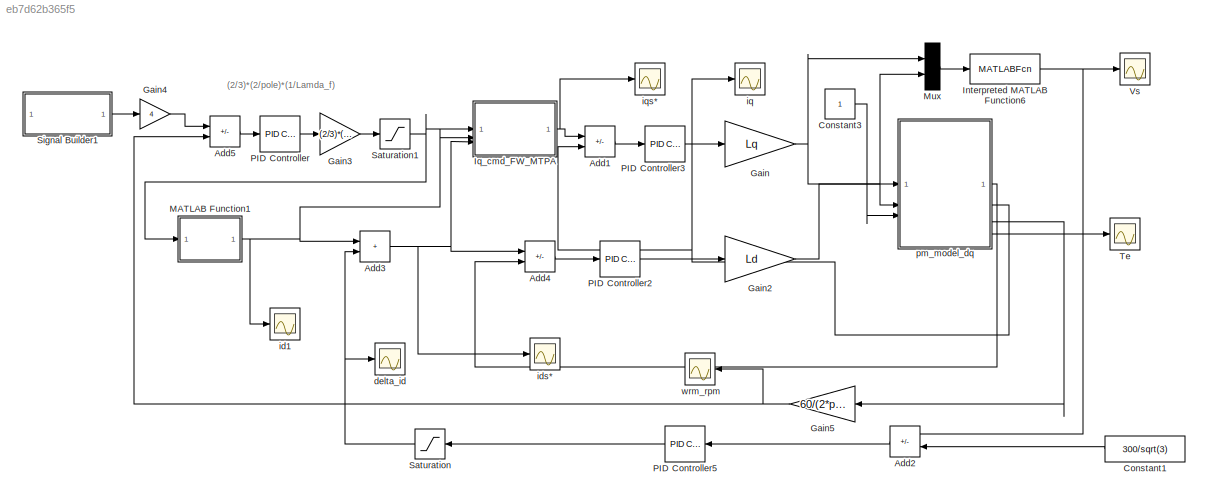
MODEL slx_eb7d62b365f5
KIND model
CONFIG AbsTol = auto
CONFIG EnableMultiTasking = off
CONFIG FixedStep = 0.00001
CONFIG MaxStep = auto
CONFIG MinStep = auto
CONFIG RelTol = 1e-4
CONFIG SampleTimeConstraint = Unconstrained
CONFIG SolverName = VariableStepAuto
CONFIG StartTime = 0.0
CONFIG StopTime = 4
BLOCK [Sum] Add1
  IconShape = rectangular
  Inputs = +-
BLOCK [Sum] Add2
  IconShape = rectangular
  Inputs = -+
  NameLocation = top
BLOCK [Sum] Add3
  IconShape = rectangular
BLOCK [Sum] Add4
  IconShape = rectangular
  Inputs = +-
BLOCK [Sum] Add5
  IconShape = rectangular
  Inputs = +-
BLOCK [Constant] Constant1
  NameLocation = top
  Value = 300/sqrt(3)
BLOCK [Constant] Constant3
BLOCK [Gain] Gain
  Gain = Lq
BLOCK [Gain] Gain2
  Gain = Ld
BLOCK [Gain] Gain3
  Gain = (2/3)*(2/pole)*(1/Lamda_f)
BLOCK [Gain] Gain4
  Gain = 4
BLOCK [Gain] Gain5
  Gain = 60/(2*pi)
BLOCK [MATLABFcn] Interpreted MATLAB Function6
  MATLABFcn = sqrt(u(1)^2+u(2)^2)
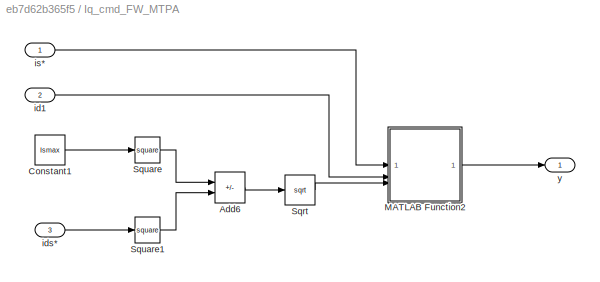
BLOCK [SubSystem] Iq_cmd_FW_MTPA
BLOCK [Sum] Iq_cmd_FW_MTPA/Add6
  IconShape = rectangular
  Inputs = +-
BLOCK [Constant] Iq_cmd_FW_MTPA/Constant1
  NameLocation = left
  Value = Ismax
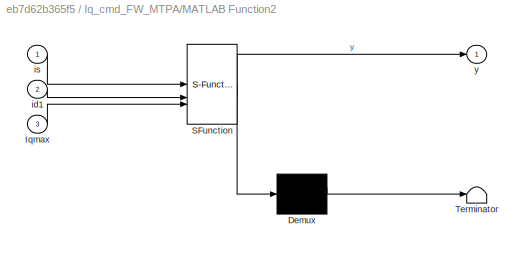
BLOCK [SubSystem] Iq_cmd_FW_MTPA/MATLAB Function2
  ErrorFcn = Stateflow.Translate.translate
  LibrarySourceBlock = simulink/User-Defined\nFunctions/MATLAB Function
  PermitHierarchicalResolution = ExplicitOnly
  SFBlockType = MATLAB Function
  TreatAsAtomicUnit = on
BLOCK [Demux] Iq_cmd_FW_MTPA/MATLAB Function2/ Demux 
  Outputs = 1
BLOCK [S-Function] Iq_cmd_FW_MTPA/MATLAB Function2/ SFunction 
  EnableBusSupport = on
  FunctionName = sf_sfun
  PortCounts = [3 2]
  SFcnIsStateOwnerBlock = off
  SFunctionDeploymentMode = off
  Tag = Stateflow S-Function 2
BLOCK [Terminator] Iq_cmd_FW_MTPA/MATLAB Function2/ Terminator 
BLOCK [Inport] Iq_cmd_FW_MTPA/MATLAB Function2/Iqmax
  Port = 3
BLOCK [Inport] Iq_cmd_FW_MTPA/MATLAB Function2/id1
  Port = 2
BLOCK [Inport] Iq_cmd_FW_MTPA/MATLAB Function2/is
BLOCK [Outport] Iq_cmd_FW_MTPA/MATLAB Function2/y
BLOCK [Sqrt] Iq_cmd_FW_MTPA/Sqrt
BLOCK [Math] Iq_cmd_FW_MTPA/Square
  Operator = square
BLOCK [Math] Iq_cmd_FW_MTPA/Square1
  Operator = square
BLOCK [Inport] Iq_cmd_FW_MTPA/id1
  Port = 2
BLOCK [Inport] Iq_cmd_FW_MTPA/ids*
  Port = 3
BLOCK [Inport] Iq_cmd_FW_MTPA/is*
BLOCK [Outport] Iq_cmd_FW_MTPA/y
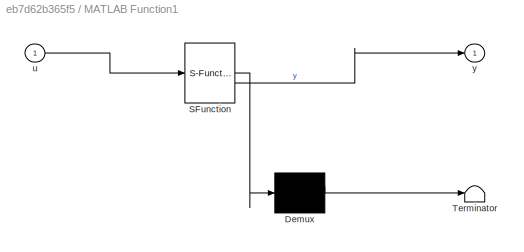
BLOCK [SubSystem] MATLAB Function1
  ErrorFcn = Stateflow.Translate.translate
  LibrarySourceBlock = simulink/User-Defined\nFunctions/MATLAB Function
  PermitHierarchicalResolution = ExplicitOnly
  SFBlockType = MATLAB Function
  TreatAsAtomicUnit = on
BLOCK [Demux] MATLAB Function1/ Demux 
  Outputs = 1
BLOCK [S-Function] MATLAB Function1/ SFunction 
  EnableBusSupport = on
  FunctionName = sf_sfun
  PortCounts = [1 2]
  SFcnIsStateOwnerBlock = off
  SFunctionDeploymentMode = off
  Tag = Stateflow S-Function 1
BLOCK [Terminator] MATLAB Function1/ Terminator 
BLOCK [Inport] MATLAB Function1/u
BLOCK [Outport] MATLAB Function1/y
BLOCK [Mux] Mux
  DisplayOption = bar
  Inputs = 2
BLOCK [Reference] PID Controller  REF=slpidlib/PID Controller
  LibrarySourceBlock = simulink/Continuous/PID Controller
  SourceBlock = slpidlib/PID Controller
  SourceType = PID 1dof
BLOCK [Reference] PID Controller2  REF=slpidlib/PID Controller
  LibrarySourceBlock = simulink/Continuous/PID Controller
  SourceBlock = slpidlib/PID Controller
  SourceType = PID 1dof
BLOCK [Reference] PID Controller3  REF=slpidlib/PID Controller
  LibrarySourceBlock = simulink/Continuous/PID Controller
  SourceBlock = slpidlib/PID Controller
  SourceType = PID 1dof
BLOCK [Reference] PID Controller5  REF=slpidlib/PID Controller
  LibrarySourceBlock = simulink/Continuous/PID Controller
  NameLocation = top
  SourceBlock = slpidlib/PID Controller
  SourceType = PID 1dof
BLOCK [Saturate] Saturation
  LowerLimit = -3.13
  NameLocation = top
  UpperLimit = 0
BLOCK [Saturate] Saturation1
  LowerLimit = -Ismax
  UpperLimit = Ismax
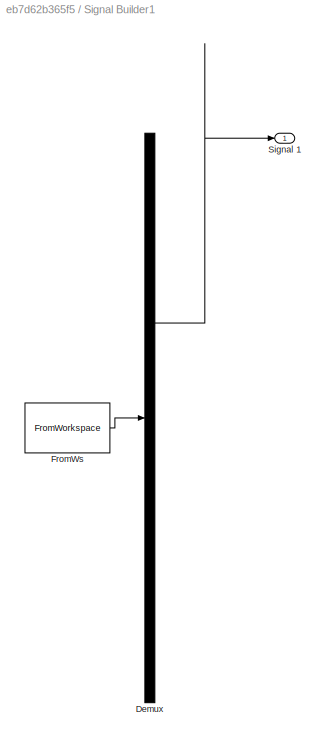
BLOCK [SubSystem] Signal Builder1
  ClipboardFcn = sigbuilder_block('clipboard');
  CloseFcn = sigbuilder_block('close');
  ContinueFcn = sigbuilder_block('continue');
  CopyFcn = sigbuilder_block('copy');
  DeleteFcn = sigbuilder_block('delete');
  LoadFcn = sigbuilder_block('load');
  MaskHideContents = on
  ModelCloseFcn = sigbuilder_block('modelClose');
  NameChangeFcn = sigbuilder_block('namechange');
  OpenFcn = sigbuilder_block('open',[346 179 550 400 ]);
  PauseFcn = sigbuilder_block('pause');
  PreSaveFcn = sigbuilder_block('preSave');
  StartFcn = sigbuilder_block('start');
  StopFcn = sigbuilder_block('stop');
  Tag = STV Subsys
BLOCK [Demux] Signal Builder1/Demux
  DisplayOption = none
  Outputs = 1
  Tag = STV Demux
BLOCK [FromWorkspace] Signal Builder1/FromWs
  Tag = STV FromWs
  VariableName = tuvar
BLOCK [Outport] Signal Builder1/Signal 1
  Tag = STV Outport
BLOCK [Scope] Te
  Floating = off
  NumInputPorts = 1
  ScopeSpecificationString = Simulink.scopes.TimeScopeBlockCfg('CurrentConfiguration', extmgr.ConfigurationSet(extmgr.Configuration('Core','General UI',true,'FigureColor',[1 1 1]),extmgr.Configuration('Core','Source UI',true),extmgr.Configuration('Sources','WiredSimulink',true,'DataLoggingVariableName','ScopeData1'),extmgr.Configuration('Visuals','Time Domain',true,'SerializedDisplays',{struct('MinYLimReal','-0.4457','MaxYLim...<+1562ch>
BLOCK [Scope] Vs
  Floating = off
  NumInputPorts = 1
  ScopeSpecificationString = Simulink.scopes.TimeScopeBlockCfg('CurrentConfiguration', extmgr.ConfigurationSet(extmgr.Configuration('Core','General UI',true,'FigureColor',[1 1 1]),extmgr.Configuration('Core','Source UI',true),extmgr.Configuration('Sources','WiredSimulink',true,'DataLoggingVariableName','ScopeData2'),extmgr.Configuration('Visuals','Time Domain',true,'SerializedDisplays',{struct('MinYLimReal','-31.0199','MaxYLi...<+1591ch>
BLOCK [Scope] delta_id
  Floating = off
  NumInputPorts = 1
  ScopeSpecificationString = Simulink.scopes.TimeScopeBlockCfg('CurrentConfiguration', extmgr.ConfigurationSet(extmgr.Configuration('Core','General UI',true,'FigureColor',[1 1 1]),extmgr.Configuration('Core','Source UI',true),extmgr.Configuration('Sources','WiredSimulink',true,'DataLoggingVariableName','ScopeData2'),extmgr.Configuration('Visuals','Time Domain',true,'SerializedDisplays',{struct('MinYLimReal','-3.52125','MaxYLi...<+1580ch>
BLOCK [Scope] id1
  Floating = off
  NumInputPorts = 1
  ScopeSpecificationString = Simulink.scopes.TimeScopeBlockCfg('CurrentConfiguration', extmgr.ConfigurationSet(extmgr.Configuration('Core','General UI',true,'FigureColor',[1 1 1]),extmgr.Configuration('Core','Source UI',true),extmgr.Configuration('Sources','WiredSimulink',true,'DataLoggingVariableName','ScopeData4'),extmgr.Configuration('Visuals','Time Domain',true,'SerializedDisplays',{struct('MinYLimReal','-0.4171','MaxYLim...<+1579ch>
BLOCK [Scope] ids*
  Floating = off
  NumInputPorts = 1
  ScopeSpecificationString = Simulink.scopes.TimeScopeBlockCfg('CurrentConfiguration', extmgr.ConfigurationSet(extmgr.Configuration('Core','General UI',true,'FigureColor',[1 1 1]),extmgr.Configuration('Core','Source UI',true),extmgr.Configuration('Sources','WiredSimulink',true,'DataLoggingVariableName','ScopeData3'),extmgr.Configuration('Visuals','Time Domain',true,'SerializedDisplays',{struct('MinYLimReal','-3.54599','MaxYLi...<+1570ch>
BLOCK [Scope] iq
  Floating = off
  NumInputPorts = 1
  ScopeSpecificationString = Simulink.scopes.TimeScopeBlockCfg('CurrentConfiguration', extmgr.ConfigurationSet(extmgr.Configuration('Core','General UI',true,'FigureColor',[1 1 1]),extmgr.Configuration('Core','Source UI',true),extmgr.Configuration('Sources','WiredSimulink',true,'DataLoggingVariableName','ScopeData1'),extmgr.Configuration('Visuals','Time Domain',true,'SerializedDisplays',{struct('MinYLimReal','0.69924','MaxYLim...<+1566ch>
BLOCK [Scope] iqs*
  Floating = off
  NumInputPorts = 1
  ScopeSpecificationString = Simulink.scopes.TimeScopeBlockCfg('CurrentConfiguration', extmgr.ConfigurationSet(extmgr.Configuration('Core','General UI',true,'FigureColor',[1 1 1]),extmgr.Configuration('Core','Source UI',true),extmgr.Configuration('Sources','WiredSimulink',true,'DataLoggingVariableName','ScopeData1'),extmgr.Configuration('Visuals','Time Domain',true,'SerializedDisplays',{struct('MinYLimReal','0.73221','MaxYLim...<+1567ch>
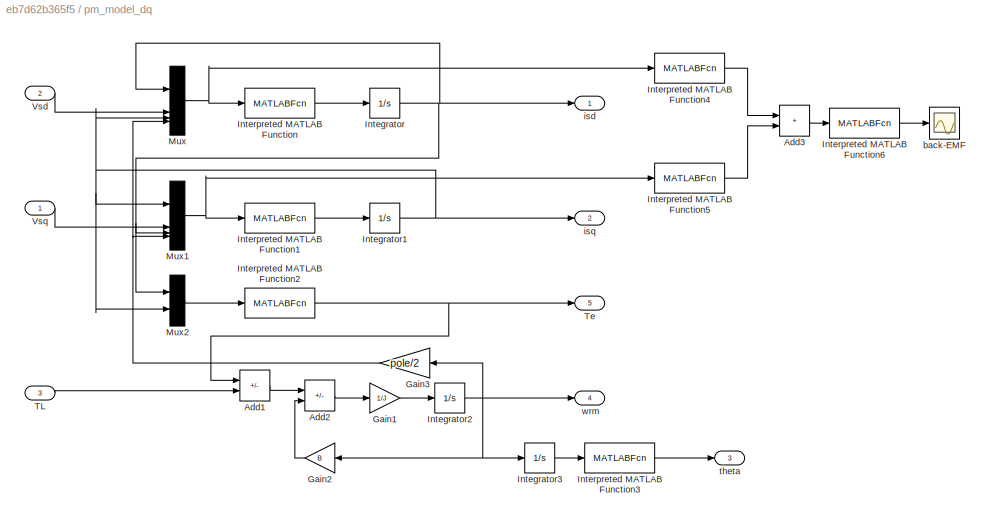
BLOCK [SubSystem] pm_model_dq
BLOCK [Sum] pm_model_dq/Add1
  IconShape = rectangular
  Inputs = +-
BLOCK [Sum] pm_model_dq/Add2
  IconShape = rectangular
  Inputs = +-
BLOCK [Sum] pm_model_dq/Add3
  IconShape = rectangular
BLOCK [Gain] pm_model_dq/Gain1
  Gain = 1/J
BLOCK [Gain] pm_model_dq/Gain2
  Gain = B
  NameLocation = top
BLOCK [Gain] pm_model_dq/Gain3
  Gain = pole/2
BLOCK [Integrator] pm_model_dq/Integrator
BLOCK [Integrator] pm_model_dq/Integrator1
BLOCK [Integrator] pm_model_dq/Integrator2
BLOCK [Integrator] pm_model_dq/Integrator3
BLOCK [MATLABFcn] pm_model_dq/Interpreted MATLAB Function
  MATLABFcn = -(Rs/Ld)*u(1) + (Lq/Ld)*u(3)*u(4) + u(2)/Ld
BLOCK [MATLABFcn] pm_model_dq/Interpreted MATLAB Function1
  MATLABFcn = -(Rs/Lq)*u(1) - (Ld/Lq)*u(3)*u(4) - (Lamda_f/Lq)*u(4) + u(2)/Lq
BLOCK [MATLABFcn] pm_model_dq/Interpreted MATLAB Function2
  MATLABFcn = 3/2*(pole/2)*(Lamda_f*u(2) + (Ld-Lq)*u(1)*u(2))
BLOCK [MATLABFcn] pm_model_dq/Interpreted MATLAB Function3
  MATLABFcn = mod(u, 2*pi)
BLOCK [MATLABFcn] pm_model_dq/Interpreted MATLAB Function4
  MATLABFcn = (Lq*u(3)*u(4))^2
BLOCK [MATLABFcn] pm_model_dq/Interpreted MATLAB Function5
  MATLABFcn = (Ld*u(3)*u(4) + Lamda_f*u(4))^2
BLOCK [MATLABFcn] pm_model_dq/Interpreted MATLAB Function6
  MATLABFcn = sqrt(u(1))
BLOCK [Mux] pm_model_dq/Mux
  DisplayOption = bar
BLOCK [Mux] pm_model_dq/Mux1
  DisplayOption = bar
BLOCK [Mux] pm_model_dq/Mux2
  DisplayOption = bar
  Inputs = 2
BLOCK [Inport] pm_model_dq/TL
  Port = 3
BLOCK [Outport] pm_model_dq/Te
  Port = 5
BLOCK [Inport] pm_model_dq/Vsd
  Port = 2
BLOCK [Inport] pm_model_dq/Vsq
BLOCK [Scope] pm_model_dq/back-EMF
  Floating = off
  NumInputPorts = 1
  ScopeSpecificationString = Simulink.scopes.TimeScopeBlockCfg('CurrentConfiguration', extmgr.ConfigurationSet(extmgr.Configuration('Core','General UI',true,'FigureColor',[1 1 1]),extmgr.Configuration('Core','Source UI',true),extmgr.Configuration('Sources','WiredSimulink',true,'DataLoggingVariableName','ScopeData1'),extmgr.Configuration('Visuals','Time Domain',true,'SerializedDisplays',{struct('MinYLimReal','57.99816','MaxYLi...<+1589ch>
BLOCK [Outport] pm_model_dq/isd
BLOCK [Outport] pm_model_dq/isq
  Port = 2
BLOCK [Outport] pm_model_dq/theta
  Port = 3
BLOCK [Outport] pm_model_dq/wrm
  Port = 4
BLOCK [Scope] wrm_rpm
  Floating = off
  NameLocation = top
  NumInputPorts = 1
  ScopeSpecificationString = Simulink.scopes.TimeScopeBlockCfg('CurrentConfiguration', extmgr.ConfigurationSet(extmgr.Configuration('Core','General UI',true,'FigureColor',[1 1 1]),extmgr.Configuration('Core','Source UI',true),extmgr.Configuration('Sources','WiredSimulink',true),extmgr.Configuration('Visuals','Time Domain',true,'SerializedDisplays',{struct('MinYLimReal','-533.26391','MaxYLimReal','4508.62461','YLabelReal','','...<+1539ch>
ANNOTATION (root): (2/3)*(2/pole)*(1/Lamda_f)
LINE Add1:1 -> PID Controller3:1
LINE Add2:1 -> PID Controller5:1
NET Add3:1 -> Add4:1, Iq_cmd_FW_MTPA:3, ids*:1
LINE Add4:1 -> PID Controller2:1
LINE Add5:1 -> PID Controller:1
LINE Constant1:1 -> Add2:2
LINE Constant3:1 -> pm_model_dq:3
NET Gain2:1 -> Mux:2, pm_model_dq:2
LINE Gain3:1 -> Saturation1:1
LINE Gain4:1 -> Add5:1
NET Gain5:1 -> Add5:2, wrm_rpm:1
NET Gain:1 -> Mux:1, pm_model_dq:1
NET Interpreted MATLAB Function6:1 -> Add2:1, Vs:1
LINE Iq_cmd_FW_MTPA/Add6:1 -> Iq_cmd_FW_MTPA/Sqrt:1
LINE Iq_cmd_FW_MTPA/Constant1:1 -> Iq_cmd_FW_MTPA/Square:1
LINE Iq_cmd_FW_MTPA/MATLAB Function2:1 -> Iq_cmd_FW_MTPA/y:1
LINE Iq_cmd_FW_MTPA/Sqrt:1 -> Iq_cmd_FW_MTPA/MATLAB Function2:3
LINE Iq_cmd_FW_MTPA/Square1:1 -> Iq_cmd_FW_MTPA/Add6:2
LINE Iq_cmd_FW_MTPA/Square:1 -> Iq_cmd_FW_MTPA/Add6:1
LINE Iq_cmd_FW_MTPA/id1:1 -> Iq_cmd_FW_MTPA/MATLAB Function2:2
LINE Iq_cmd_FW_MTPA/ids*:1 -> Iq_cmd_FW_MTPA/Square1:1
LINE Iq_cmd_FW_MTPA/is*:1 -> Iq_cmd_FW_MTPA/MATLAB Function2:1
NET Iq_cmd_FW_MTPA:1 -> Add1:1, iqs*:1
NET MATLAB Function1:1 -> Add3:1, Iq_cmd_FW_MTPA:2, id1:1
LINE Mux:1 -> Interpreted MATLAB Function6:1
LINE PID Controller2:1 -> Gain2:1
LINE PID Controller3:1 -> Gain:1
LINE PID Controller5:1 -> Saturation:1
LINE PID Controller:1 -> Gain3:1
NET Saturation1:1 -> Iq_cmd_FW_MTPA:1, MATLAB Function1:1
NET Saturation:1 -> Add3:2, delta_id:1
LINE Signal Builder1:1 -> Gain4:1
LINE pm_model_dq/Add1:1 -> pm_model_dq/Add2:1
LINE pm_model_dq/Add2:1 -> pm_model_dq/Gain1:1
LINE pm_model_dq/Add3:1 -> pm_model_dq/Interpreted MATLAB Function6:1
LINE pm_model_dq/Gain1:1 -> pm_model_dq/Integrator2:1
LINE pm_model_dq/Gain2:1 -> pm_model_dq/Add2:2
NET pm_model_dq/Gain3:1 -> pm_model_dq/Mux1:4, pm_model_dq/Mux:4
NET pm_model_dq/Integrator1:1 -> pm_model_dq/Mux1:1, pm_model_dq/Mux2:2, pm_model_dq/Mux:3, pm_model_dq/isq:1
NET pm_model_dq/Integrator2:1 -> pm_model_dq/Gain2:1, pm_model_dq/Gain3:1, pm_model_dq/Integrator3:1, pm_model_dq/wrm:1
LINE pm_model_dq/Integrator3:1 -> pm_model_dq/Interpreted MATLAB Function3:1
NET pm_model_dq/Integrator:1 -> pm_model_dq/Mux1:3, pm_model_dq/Mux2:1, pm_model_dq/Mux:1, pm_model_dq/isd:1
LINE pm_model_dq/Interpreted MATLAB Function1:1 -> pm_model_dq/Integrator1:1
NET pm_model_dq/Interpreted MATLAB Function2:1 -> pm_model_dq/Add1:1, pm_model_dq/Te:1
LINE pm_model_dq/Interpreted MATLAB Function3:1 -> pm_model_dq/theta:1
LINE pm_model_dq/Interpreted MATLAB Function4:1 -> pm_model_dq/Add3:1
LINE pm_model_dq/Interpreted MATLAB Function5:1 -> pm_model_dq/Add3:2
LINE pm_model_dq/Interpreted MATLAB Function6:1 -> pm_model_dq/back-EMF:1
LINE pm_model_dq/Interpreted MATLAB Function:1 -> pm_model_dq/Integrator:1
NET pm_model_dq/Mux1:1 -> pm_model_dq/Interpreted MATLAB Function1:1, pm_model_dq/Interpreted MATLAB Function5:1
LINE pm_model_dq/Mux2:1 -> pm_model_dq/Interpreted MATLAB Function2:1
NET pm_model_dq/Mux:1 -> pm_model_dq/Interpreted MATLAB Function4:1, pm_model_dq/Interpreted MATLAB Function:1
LINE pm_model_dq/TL:1 -> pm_model_dq/Add1:2
LINE pm_model_dq/Vsd:1 -> pm_model_dq/Mux:2
LINE pm_model_dq/Vsq:1 -> pm_model_dq/Mux1:2
LINE pm_model_dq:1 -> Add4:2
NET pm_model_dq:2 -> Add1:2, iq:1
LINE pm_model_dq:4 -> Gain5:1
LINE pm_model_dq:5 -> Te:1
note: NET lines group one-source signal fan-out (src -> all destinations, sorted); 1:1 wires keep LINE
CHART MATLAB Function1 states=1 transitions=1
  STATE_LABEL 'eML_blk_kernel()'
  STATE_LABEL 'SCRIPT:\nfunction y = pm_fw(u)\n    Ld = 27e-3;\n    Lq = 67e-3;\n    Lamda_f = 0.272;\n    y = (Lamda_f - sqrt(Lamda_f^2 + 8*(Lq-Ld)^2*u^2))/(4*(Lq-Ld));'
CHART Iq_cmd_FW_MTPA/MATLAB Function2 states=1 transitions=1
  STATE_LABEL 'eML_blk_kernel()'
  STATE_LABEL 'SCRIPT:\nfunction y = iq_cmd(is, id1, Iqmax)\n    iq1 = sqrt(is^2-id1^2);\n    if (iq1 > Iqmax)\n        y = Iqmax;\n    elseif (iq1 < -Iqmax)\n        y = -Iqmax;\n    else\n        y = iq1;\n    end'
CHART  states=0 transitions=0
CHART  states=0 transitions=0
